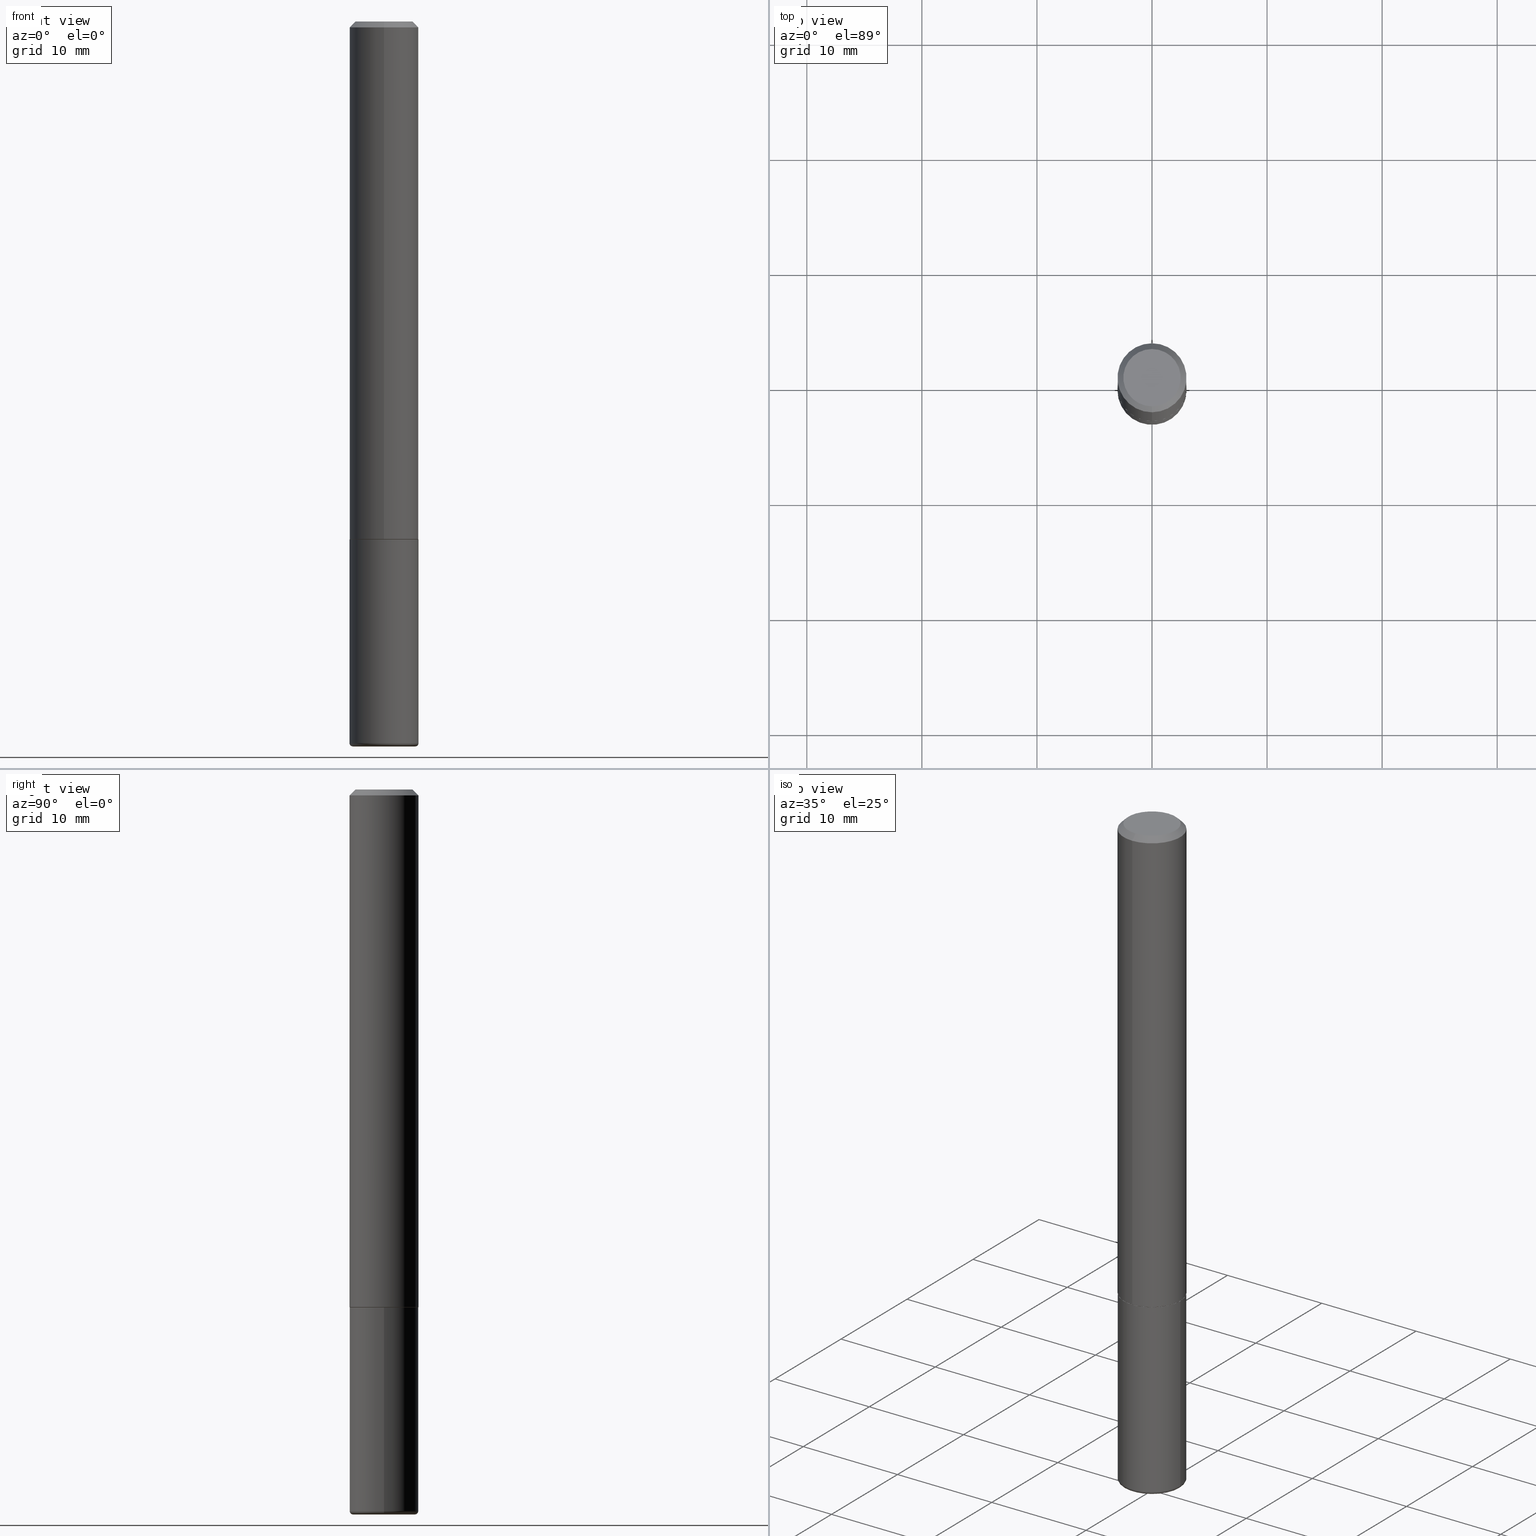
[diagram: canonical four-view strip — front | top / right | iso, engineering-drawing reading convention]
A machine part, canonical four-view strip (front | top / right | iso — engineering-drawing reading convention). The complete STEP part file that produces these views, byte-faithful:
ISO-10303-21;
HEADER;
FILE_DESCRIPTION (( 'STEP AP203' ),
    '1' );
FILE_NAME ('47481.STEP',
    '2024-03-06T01:48:49',
    ( '' ),
    ( '' ),
    'SwSTEP 2.0',
    'SolidWorks 2023',
    '' );
FILE_SCHEMA (( 'CONFIG_CONTROL_DESIGN' ));
ENDSEC;

DATA;
#1 = CIRCLE ( 'NONE', #157, 0.1180999999999999966 ) ;
#2 = CIRCLE ( 'NONE', #327, 0.1180999999999999966 ) ;
#3 = LOCAL_TIME ( 20, 48, 49.00000000000000000, #82 ) ;
#4 = EDGE_LOOP ( 'NONE', ( #145, #46 ) ) ;
#5 = ORIENTED_EDGE ( 'NONE', *, *, #284, .T. ) ;
#6 = DIRECTION ( 'NONE',  ( 1.000000000000000000, -6.982962677686265133E-15, 0.000000000000000000 ) ) ;
#7 = ADVANCED_FACE ( 'NONE', ( #159 ), #326, .F. ) ;
#8 = DIRECTION ( 'NONE',  ( 1.000000000000000000, -6.982962677686266711E-15, 4.876176775795936353E-29 ) ) ;
#9 = DIRECTION ( 'NONE',  ( 1.000000000000000000, -6.982962677686266711E-15, 4.876176775795936353E-29 ) ) ;
#10 = CARTESIAN_POINT ( 'NONE',  ( -0.1180999999999999966, -6.562964041481733724E-15, -1.771600000000000286 ) ) ;
#11 = DIRECTION ( 'NONE',  ( 1.000000000000000000, -6.982962677686347963E-15, 0.000000000000000000 ) ) ;
#12 = VERTEX_POINT ( 'NONE', #94 ) ;
#13 = PERSON_AND_ORGANIZATION_ROLE ( 'design_owner' ) ;
#14 = DIRECTION ( 'NONE',  ( 7.105427357601001859E-15, 1.000000000000000000, -3.491481338843145583E-15 ) ) ;
#15 = LINE ( 'NONE', #184, #301 ) ;
#16 = EDGE_LOOP ( 'NONE', ( #213, #5, #247, #311 ) ) ;
#17 = CALENDAR_DATE ( 2024, 5, 3 ) ;
#18 =( GEOMETRIC_REPRESENTATION_CONTEXT ( 3 ) GLOBAL_UNCERTAINTY_ASSIGNED_CONTEXT ( ( #128 ) ) GLOBAL_UNIT_ASSIGNED_CONTEXT ( ( #221, #273, #96 ) ) REPRESENTATION_CONTEXT ( 'NONE', 'WORKASPACE' ) );
#19 = CC_DESIGN_APPROVAL ( #352, ( #155 ) ) ;
#20 = DIRECTION ( 'NONE',  ( -1.000000000000000000, 6.982962677686265922E-15, -4.876176775795935793E-29 ) ) ;
#21 = VERTEX_POINT ( 'NONE', #166 ) ;
#22 = ORIENTED_EDGE ( 'NONE', *, *, #366, .T. ) ;
#23 = DATE_AND_TIME ( #17, #167 ) ;
#24 = DIRECTION ( 'NONE',  ( -2.443238767566187138E-29, 3.494674881071396916E-15, 1.000000000000000000 ) ) ;
#25 = SECURITY_CLASSIFICATION_LEVEL ( 'unclassified' ) ;
#26 = CIRCLE ( 'NONE', #296, 0.01180000000000033626 ) ;
#27 = DIRECTION ( 'NONE',  ( -6.982962677686265922E-15, -1.000000000000000000, 3.494674881071396522E-15 ) ) ;
#28 = CARTESIAN_POINT ( 'NONE',  ( 4.328441800620257960E-29, -6.191166019306087880E-15, -1.771600000000000286 ) ) ;
#29 = EDGE_CURVE ( 'NONE', #399, #208, #398, .T. ) ;
#30 = ADVANCED_FACE ( 'NONE', ( #36 ), #125, .F. ) ;
#31 = AXIS2_PLACEMENT_3D ( 'NONE', #100, #200, #268 ) ;
#32 = AXIS2_PLACEMENT_3D ( 'NONE', #88, #276, #127 ) ;
#33 = CC_DESIGN_APPROVAL ( #260, ( #246 ) ) ;
#34 = DIRECTION ( 'NONE',  ( -6.982962677686266711E-15, -1.000000000000000000, 3.491481338843145583E-15 ) ) ;
#35 = EDGE_CURVE ( 'NONE', #112, #77, #1, .T. ) ;
#36 = FACE_OUTER_BOUND ( 'NONE', #274, .T. ) ;
#37 = CARTESIAN_POINT ( 'NONE',  ( 4.328441800620257960E-29, -6.191166019306087880E-15, -1.771600000000000286 ) ) ;
#38 = VECTOR ( 'NONE', #272, 39.37007874015748143 ) ;
#39 = CARTESIAN_POINT ( 'NONE',  ( 0.000000000000000000, 0.000000000000000000, 0.000000000000000000 ) ) ;
#40 = ORIENTED_EDGE ( 'NONE', *, *, #119, .F. ) ;
#41 = CARTESIAN_POINT ( 'NONE',  ( -0.1063000000000000056, -7.863414756821319342E-15, -2.468500000000000139 ) ) ;
#42 = CARTESIAN_POINT ( 'NONE',  ( 0.000000000000000000, 0.000000000000000000, 0.000000000000000000 ) ) ;
#43 = EDGE_CURVE ( 'NONE', #226, #399, #220, .T. ) ;
#44 = ORIENTED_EDGE ( 'NONE', *, *, #29, .F. ) ;
#45 = CARTESIAN_POINT ( 'NONE',  ( 4.886477535132384121E-31, -6.989349762142808870E-17, -0.02000000000000004205 ) ) ;
#46 = ORIENTED_EDGE ( 'NONE', *, *, #43, .F. ) ;
#47 = AXIS2_PLACEMENT_3D ( 'NONE', #42, #174, #9 ) ;
#48 = VECTOR ( 'NONE', #78, 39.37007874015748143 ) ;
#49 = CARTESIAN_POINT ( 'NONE',  ( 4.886477535132384121E-31, -6.989349762142808870E-17, -0.02000000000000004205 ) ) ;
#50 = EDGE_LOOP ( 'NONE', ( #376, #215, #231, #179 ) ) ;
#51 = PERSON_AND_ORGANIZATION ( #192, #132 ) ;
#52 = DIRECTION ( 'NONE',  ( -2.445468806185136597E-29, 3.491481338843145583E-15, 1.000000000000000000 ) ) ;
#53 = ORIENTED_EDGE ( 'NONE', *, *, #349, .F. ) ;
#54 = DIRECTION ( 'NONE',  ( -2.443238767566187138E-29, 3.494674881071396916E-15, 1.000000000000000000 ) ) ;
#55 = DIRECTION ( 'NONE',  ( -2.445468806185136597E-29, 3.491481338843145583E-15, 1.000000000000000000 ) ) ;
#56 = AXIS2_PLACEMENT_3D ( 'NONE', #281, #318, #27 ) ;
#57 = CARTESIAN_POINT ( 'NONE',  ( -8.102248135368172434E-16, -0.1181000000000000660, -0.01999999999999962919 ) ) ;
#58 = CARTESIAN_POINT ( 'NONE',  ( -8.177049295570184665E-16, -0.1171000000000061991, -1.771600000000000064 ) ) ;
#59 = SHAPE_DEFINITION_REPRESENTATION ( #163, #62 ) ;
#60 = TOROIDAL_SURFACE ( 'NONE', #190, 0.1063000000000000056, 0.01180000000000033626 ) ;
#61 = AXIS2_PLACEMENT_3D ( 'NONE', #64, #205, #197 ) ;
#62 = ADVANCED_BREP_SHAPE_REPRESENTATION ( '47481', ( #386, #382, #61 ), #18 ) ;
#63 = EDGE_CURVE ( 'NONE', #295, #12, #322, .T. ) ;
#64 = CARTESIAN_POINT ( 'NONE',  ( 0.000000000000000000, 0.000000000000000000, 0.000000000000000000 ) ) ;
#65 = AXIS2_PLACEMENT_3D ( 'NONE', #76, #206, #329 ) ;
#66 = AXIS2_PLACEMENT_3D ( 'NONE', #214, #342, #219 ) ;
#67 = DIRECTION ( 'NONE',  ( 6.982962677686265922E-15, 1.000000000000000000, -3.505890868245046092E-15 ) ) ;
#68 = ADVANCED_FACE ( 'NONE', ( #225 ), #255, .T. ) ;
#69 = ORIENTED_EDGE ( 'NONE', *, *, #312, .T. ) ;
#70 = DESIGN_CONTEXT ( 'detailed design', #162, 'design' ) ;
#71 = DIRECTION ( 'NONE',  ( 2.438088387897960049E-29, -3.491481338843145188E-15, -1.000000000000000000 ) ) ;
#72 = CARTESIAN_POINT ( 'NONE',  ( 4.332392537037588763E-29, -6.185508339894517569E-15, -1.771600000000000286 ) ) ;
#73 = FACE_OUTER_BOUND ( 'NONE', #141, .T. ) ;
#74 = CIRCLE ( 'NONE', #122, 0.1180999999999999966 ) ;
#75 = ORIENTED_EDGE ( 'NONE', *, *, #63, .T. ) ;
#76 = CARTESIAN_POINT ( 'NONE',  ( 6.036639748068010694E-29, -8.618721684934306273E-15, -2.468500000000000139 ) ) ;
#77 = VERTEX_POINT ( 'NONE', #229 ) ;
#78 = DIRECTION ( 'NONE',  ( 4.937700262164540942E-15, 0.7071067811865441310, -0.7071067811865509034 ) ) ;
#79 = VERTEX_POINT ( 'NONE', #359 ) ;
#80 = DIRECTION ( 'NONE',  ( 1.000000000000000000, -6.982962677686260400E-15, 0.000000000000000000 ) ) ;
#81 = ORIENTED_EDGE ( 'NONE', *, *, #164, .F. ) ;
#82 = COORDINATED_UNIVERSAL_TIME_OFFSET ( 5, 0, .BEHIND. ) ;
#83 = ADVANCED_FACE ( 'NONE', ( #73 ), #356, .T. ) ;
#84 = CIRCLE ( 'NONE', #212, 0.1181000000000002326 ) ;
#85 = LINE ( 'NONE', #153, #338 ) ;
#86 = VERTEX_POINT ( 'NONE', #131 ) ;
#87 = FACE_OUTER_BOUND ( 'NONE', #282, .T. ) ;
#88 = CARTESIAN_POINT ( 'NONE',  ( 4.328441800620257960E-29, -6.191166019306087880E-15, -1.771600000000000286 ) ) ;
#89 = CIRCLE ( 'NONE', #323, 0.1170999999999999958 ) ;
#90 = EDGE_CURVE ( 'NONE', #79, #363, #227, .T. ) ;
#91 = AXIS2_PLACEMENT_3D ( 'NONE', #39, #304, #8 ) ;
#92 = EDGE_LOOP ( 'NONE', ( #95, #367, #243, #331 ) ) ;
#93 = ADVANCED_FACE ( 'NONE', ( #265 ), #228, .T. ) ;
#94 = CARTESIAN_POINT ( 'NONE',  ( 7.548582654578847672E-16, 0.09809999999999975684, -8.213505744438662948E-17 ) ) ;
#95 = ORIENTED_EDGE ( 'NONE', *, *, #401, .T. ) ;
#96 =( NAMED_UNIT ( * ) SI_UNIT ( $, .STERADIAN. ) SOLID_ANGLE_UNIT ( ) );
#97 = AXIS2_PLACEMENT_3D ( 'NONE', #325, #203, #307 ) ;
#98 = DIRECTION ( 'NONE',  ( -6.982962677686265922E-15, -1.000000000000000000, 3.494674881071397705E-15 ) ) ;
#99 = CC_DESIGN_DATE_AND_TIME_ASSIGNMENT ( #156, #385, ( #355 ) ) ;
#100 = CARTESIAN_POINT ( 'NONE',  ( 4.328441800620257960E-29, -6.191166019306087880E-15, -1.771600000000000286 ) ) ;
#101 = DIRECTION ( 'NONE',  ( -2.445468806185136597E-29, 3.491481338843145583E-15, 1.000000000000000000 ) ) ;
#102 = DIRECTION ( 'NONE',  ( -6.982962677686265922E-15, -1.000000000000000000, 3.494674881071397310E-15 ) ) ;
#103 = AXIS2_PLACEMENT_3D ( 'NONE', #111, #52, #80 ) ;
#104 = ORIENTED_EDGE ( 'NONE', *, *, #312, .F. ) ;
#105 = DIRECTION ( 'NONE',  ( 2.443238767566186578E-29, -3.494674881071397310E-15, -1.000000000000000000 ) ) ;
#106 = DIRECTION ( 'NONE',  ( -2.445468806185136877E-29, 3.491481338843145188E-15, 1.000000000000000000 ) ) ;
#107 = ORIENTED_EDGE ( 'NONE', *, *, #119, .T. ) ;
#108 = CALENDAR_DATE ( 2024, 5, 3 ) ;
#109 = DIRECTION ( 'NONE',  ( -6.982962677686265922E-15, -1.000000000000000000, 2.332918867347791121E-15 ) ) ;
#110 = ORIENTED_EDGE ( 'NONE', *, *, #230, .F. ) ;
#111 = CARTESIAN_POINT ( 'NONE',  ( 6.065496279980995876E-29, -8.659921164732656913E-15, -2.480300000000001059 ) ) ;
#112 = VERTEX_POINT ( 'NONE', #270 ) ;
#113 = CARTESIAN_POINT ( 'NONE',  ( 4.328441800620257960E-29, -6.191166019306087880E-15, -1.771600000000000286 ) ) ;
#114 = APPLICATION_PROTOCOL_DEFINITION ( 'international standard', 'config_control_design', 1994, #162 ) ;
#115 = CC_DESIGN_DATE_AND_TIME_ASSIGNMENT ( #368, #278, ( #246 ) ) ;
#116 = DIRECTION ( 'NONE',  ( 2.438088387897960049E-29, -3.491481338843145188E-15, -1.000000000000000000 ) ) ;
#117 = ADVANCED_FACE ( 'NONE', ( #198 ), #161, .T. ) ;
#118 = AXIS2_PLACEMENT_3D ( 'NONE', #283, #177, #149 ) ;
#119 = EDGE_CURVE ( 'NONE', #21, #77, #26, .T. ) ;
#120 = COORDINATED_UNIVERSAL_TIME_OFFSET ( 5, 0, .BEHIND. ) ;
#121 = CLOSED_SHELL ( 'NONE', ( #83, #68, #30, #117, #321, #328 ) ) ;
#122 = AXIS2_PLACEMENT_3D ( 'NONE', #373, #169, #303 ) ;
#123 = VERTEX_POINT ( 'NONE', #129 ) ;
#124 = APPROVAL ( #195, 'UNSPECIFIED' ) ;
#125 = PLANE ( 'NONE',  #189 ) ;
#126 = VERTEX_POINT ( 'NONE', #137 ) ;
#127 = DIRECTION ( 'NONE',  ( -6.982962677686265922E-15, -1.000000000000000000, 2.332918867347791121E-15 ) ) ;
#128 = UNCERTAINTY_MEASURE_WITH_UNIT (LENGTH_MEASURE( 1.000000000000000082E-05 ), #221, 'distance_accuracy_value', 'NONE');
#129 = CARTESIAN_POINT ( 'NONE',  ( -0.1063000000000000056, -7.842092475310649423E-15, -2.480300000000001059 ) ) ;
#130 = AXIS2_PLACEMENT_3D ( 'NONE', #41, #14, #241 ) ;
#131 = CARTESIAN_POINT ( 'NONE',  ( 8.391509709327014685E-16, 0.1180999999999940708, -1.770600000000000840 ) ) ;
#132 = ORGANIZATION ( 'UNSPECIFIED', 'UNSPECIFIED', '' ) ;
#133 = DIRECTION ( 'NONE',  ( -2.445468806185136597E-29, 3.491481338843145583E-15, 1.000000000000000000 ) ) ;
#134 = EDGE_CURVE ( 'NONE', #12, #295, #418, .T. ) ;
#135 = ORIENTED_EDGE ( 'NONE', *, *, #134, .T. ) ;
#136 = CARTESIAN_POINT ( 'NONE',  ( 6.065496279980995876E-29, -8.659921164732656913E-15, -2.480300000000001059 ) ) ;
#137 = CARTESIAN_POINT ( 'NONE',  ( -8.102248135368172434E-16, -0.1181000000000000660, -0.01999999999999962919 ) ) ;
#138 = EDGE_LOOP ( 'NONE', ( #343, #314 ) ) ;
#139 = DIRECTION ( 'NONE',  ( -2.443238767566187138E-29, 3.494674881071396916E-15, 1.000000000000000000 ) ) ;
#140 = AXIS2_PLACEMENT_3D ( 'NONE', #234, #299, #302 ) ;
#141 = EDGE_LOOP ( 'NONE', ( #209, #249, #199, #81 ) ) ;
#142 = APPROVAL_DATE_TIME ( #23, #352 ) ;
#143 = CARTESIAN_POINT ( 'NONE',  ( 0.000000000000000000, 0.000000000000000000, 0.000000000000000000 ) ) ;
#144 = DIRECTION ( 'NONE',  ( -2.443238767566187138E-29, 3.494674881071396916E-15, 1.000000000000000000 ) ) ;
#145 = ORIENTED_EDGE ( 'NONE', *, *, #417, .F. ) ;
#146 = DIRECTION ( 'NONE',  ( -6.982962677686265922E-15, -1.000000000000000000, 4.626330217890360659E-15 ) ) ;
#147 = ORIENTED_EDGE ( 'NONE', *, *, #401, .F. ) ;
#148 = PERSON_AND_ORGANIZATION ( #192, #132 ) ;
#149 = DIRECTION ( 'NONE',  ( 6.982962677686265922E-15, 1.000000000000000000, -3.505890868245046092E-15 ) ) ;
#150 = PRODUCT_RELATED_PRODUCT_CATEGORY ( 'detail', '', ( #232 ) ) ;
#151 = APPROVAL_ROLE ( '' ) ;
#152 = AXIS2_PLACEMENT_3D ( 'NONE', #414, #116, #20 ) ;
#153 = CARTESIAN_POINT ( 'NONE',  ( 8.391509709326790846E-16, 0.1181000000000001215, -4.127211034545323724E-16 ) ) ;
#154 = CONICAL_SURFACE ( 'NONE', #118, 0.1180999999999999966, 0.7853981633974469467 ) ;
#155 = PRODUCT_DEFINITION_FORMATION_WITH_SPECIFIED_SOURCE ( 'ANY', '', #232, .NOT_KNOWN. ) ;
#156 = DATE_AND_TIME ( #381, #389 ) ;
#157 = AXIS2_PLACEMENT_3D ( 'NONE', #397, #133, #6 ) ;
#158 = AXIS2_PLACEMENT_3D ( 'NONE', #218, #191, #416 ) ;
#159 = FACE_OUTER_BOUND ( 'NONE', #4, .T. ) ;
#160 = CC_DESIGN_PERSON_AND_ORGANIZATION_ASSIGNMENT ( #148, #210, ( #155 ) ) ;
#161 = CYLINDRICAL_SURFACE ( 'NONE', #91, 0.1180999999999999966 ) ;
#162 = APPLICATION_CONTEXT ( 'configuration controlled 3d designs of mechanical parts and assemblies' ) ;
#163 = PRODUCT_DEFINITION_SHAPE ( 'NONE', 'NONE',  #246 ) ;
#164 = EDGE_CURVE ( 'NONE', #77, #79, #358, .T. ) ;
#165 = AXIS2_PLACEMENT_3D ( 'NONE', #136, #101, #236 ) ;
#166 = CARTESIAN_POINT ( 'NONE',  ( 0.1063000000000000056, -9.402210097370707052E-15, -2.480300000000001059 ) ) ;
#167 = LOCAL_TIME ( 20, 48, 49.00000000000000000, #288 ) ;
#168 = APPLICATION_PROTOCOL_DEFINITION ( 'international standard', 'config_control_design', 1994, #275 ) ;
#169 = DIRECTION ( 'NONE',  ( -2.445468806185136597E-29, 3.491481338843145583E-15, 1.000000000000000000 ) ) ;
#170 = DIRECTION ( 'NONE',  ( -4.937700262164969294E-15, -0.7071067811866054154, 0.7071067811864896191 ) ) ;
#171 = ORIENTED_EDGE ( 'NONE', *, *, #284, .F. ) ;
#172 = APPROVAL_STATUS ( 'not_yet_approved' ) ;
#173 = CARTESIAN_POINT ( 'NONE',  ( 6.850286386810209760E-16, 0.09809999999999975684, -2.124813316387448711E-16 ) ) ;
#174 = DIRECTION ( 'NONE',  ( -2.445468806185136597E-29, 3.491481338843145583E-15, 1.000000000000000000 ) ) ;
#175 = ORIENTED_EDGE ( 'NONE', *, *, #267, .T. ) ;
#176 = PERSON_AND_ORGANIZATION ( #192, #132 ) ;
#177 = DIRECTION ( 'NONE',  ( 2.443238767566187138E-29, -3.494674881071396916E-15, -1.000000000000000000 ) ) ;
#178 = LOCAL_TIME ( 20, 48, 49.00000000000000000, #341 ) ;
#179 = ORIENTED_EDGE ( 'NONE', *, *, #201, .F. ) ;
#180 = CYLINDRICAL_SURFACE ( 'NONE', #56, 0.1181000000000001215 ) ;
#181 = ORIENTED_EDGE ( 'NONE', *, *, #267, .F. ) ;
#182 = PERSON_AND_ORGANIZATION ( #192, #132 ) ;
#183 = CC_DESIGN_PERSON_AND_ORGANIZATION_ASSIGNMENT ( #176, #372, ( #246 ) ) ;
#184 = CARTESIAN_POINT ( 'NONE',  ( 8.320455435751204777E-16, 0.1170999999999937924, -1.771600000000000508 ) ) ;
#185 = ORIENTED_EDGE ( 'NONE', *, *, #188, .T. ) ;
#186 =( LENGTH_UNIT ( ) NAMED_UNIT ( * ) SI_UNIT ( $, .METRE. ) );
#187 = DIRECTION ( 'NONE',  ( 1.000000000000000000, -6.982962677686261189E-15, 4.883557194083110659E-29 ) ) ;
#188 = EDGE_CURVE ( 'NONE', #21, #123, #320, .T. ) ;
#189 = AXIS2_PLACEMENT_3D ( 'NONE', #72, #71, #390 ) ;
#190 = AXIS2_PLACEMENT_3D ( 'NONE', #344, #55, #187 ) ;
#191 = DIRECTION ( 'NONE',  ( -2.443238767566187138E-29, 3.494674881071396916E-15, 1.000000000000000000 ) ) ;
#192 = PERSON ( 'UNSPECIFIED', 'UNSPECIFIED', 'UNSPECIFIED', ('UNSPECIFIED'), ('UNSPECIFIED'), ('UNSPECIFIED') ) ;
#193 = DIRECTION ( 'NONE',  ( -2.443238767566187138E-29, 3.494674881071397310E-15, 1.000000000000000000 ) ) ;
#194 = PERSON_AND_ORGANIZATION_ROLE ( 'classification_officer' ) ;
#195 = APPROVAL_STATUS ( 'not_yet_approved' ) ;
#196 = AXIS2_PLACEMENT_3D ( 'NONE', #37, #330, #102 ) ;
#197 = DIRECTION ( 'NONE',  ( 1.000000000000000000, 0.000000000000000000, 0.000000000000000000 ) ) ;
#198 = FACE_OUTER_BOUND ( 'NONE', #50, .T. ) ;
#199 = ORIENTED_EDGE ( 'NONE', *, *, #90, .F. ) ;
#200 = DIRECTION ( 'NONE',  ( -2.443238767566187138E-29, 3.494674881071396916E-15, 1.000000000000000000 ) ) ;
#201 = EDGE_CURVE ( 'NONE', #363, #79, #388, .T. ) ;
#202 = CARTESIAN_POINT ( 'NONE',  ( 0.1180999999999999966, -8.246878922347480654E-16, 5.758764772215000440E-30 ) ) ;
#203 = DIRECTION ( 'NONE',  ( -2.445468806185136597E-29, 3.491481338843145583E-15, 1.000000000000000000 ) ) ;
#204 = APPROVAL_PERSON_ORGANIZATION ( #182, #352, #151 ) ;
#205 = DIRECTION ( 'NONE',  ( 0.000000000000000000, 0.000000000000000000, 1.000000000000000000 ) ) ;
#206 = DIRECTION ( 'NONE',  ( -2.445468806185136597E-29, 3.491481338843145583E-15, 1.000000000000000000 ) ) ;
#207 = CC_DESIGN_PERSON_AND_ORGANIZATION_ASSIGNMENT ( #293, #194, ( #355 ) ) ;
#208 = VERTEX_POINT ( 'NONE', #412 ) ;
#209 = ORIENTED_EDGE ( 'NONE', *, *, #349, .T. ) ;
#210 = PERSON_AND_ORGANIZATION_ROLE ( 'creator' ) ;
#211 = DIRECTION ( 'NONE',  ( -6.982962677686265922E-15, -1.000000000000000000, 3.505890868245046092E-15 ) ) ;
#212 = AXIS2_PLACEMENT_3D ( 'NONE', #377, #139, #146 ) ;
#213 = ORIENTED_EDGE ( 'NONE', *, *, #63, .F. ) ;
#214 = CARTESIAN_POINT ( 'NONE',  ( 4.332392537037588763E-29, -6.185508339894517569E-15, -1.771600000000000286 ) ) ;
#215 = ORIENTED_EDGE ( 'NONE', *, *, #35, .T. ) ;
#216 = ADVANCED_FACE ( 'NONE', ( #346 ), #180, .T. ) ;
#217 = FACE_OUTER_BOUND ( 'NONE', #138, .T. ) ;
#218 = CARTESIAN_POINT ( 'NONE',  ( 4.325998561852691348E-29, -6.187671344425017014E-15, -1.770600000000000174 ) ) ;
#219 = DIRECTION ( 'NONE',  ( 1.000000000000000000, -6.982962677686265133E-15, 0.000000000000000000 ) ) ;
#220 = CIRCLE ( 'NONE', #31, 0.1170999999999999958 ) ;
#221 =( CONVERSION_BASED_UNIT ( 'INCH', #387 ) LENGTH_UNIT ( ) NAMED_UNIT ( #408 ) );
#222 = AXIS2_PLACEMENT_3D ( 'NONE', #233, #271, #67 ) ;
#223 = EDGE_CURVE ( 'NONE', #112, #363, #405, .T. ) ;
#224 = EDGE_LOOP ( 'NONE', ( #185, #240, #53, #40 ) ) ;
#225 = FACE_OUTER_BOUND ( 'NONE', #224, .T. ) ;
#226 = VERTEX_POINT ( 'NONE', #315 ) ;
#227 = CIRCLE ( 'NONE', #97, 0.1180999999999999966 ) ;
#228 = CONICAL_SURFACE ( 'NONE', #222, 0.1180999999999999966, 0.7853981633974469467 ) ;
#229 = CARTESIAN_POINT ( 'NONE',  ( 0.1181000000000001632, -9.443409577169056114E-15, -2.468500000000000139 ) ) ;
#230 = EDGE_CURVE ( 'NONE', #86, #285, #85, .T. ) ;
#231 = ORIENTED_EDGE ( 'NONE', *, *, #164, .T. ) ;
#232 = PRODUCT ( '47481', '47481', '', ( #235 ) ) ;
#233 = CARTESIAN_POINT ( 'NONE',  ( 4.886477535132384121E-31, -6.989349762142808870E-17, -0.02000000000000004205 ) ) ;
#234 = CARTESIAN_POINT ( 'NONE',  ( -6.369341406389364514E-45, 9.110357005365375257E-31, 2.606925483887165818E-16 ) ) ;
#235 = MECHANICAL_CONTEXT ( 'NONE', #275, 'mechanical' ) ;
#236 = DIRECTION ( 'NONE',  ( 1.000000000000000000, -6.982962677686260400E-15, 0.000000000000000000 ) ) ;
#237 = CIRCLE ( 'NONE', #165, 0.1063000000000000056 ) ;
#238 = ORIENTED_EDGE ( 'NONE', *, *, #90, .T. ) ;
#239 = LOCAL_TIME ( 20, 48, 49.00000000000000000, #257 ) ;
#240 = ORIENTED_EDGE ( 'NONE', *, *, #384, .T. ) ;
#241 = DIRECTION ( 'NONE',  ( -1.000000000000000000, 7.105427357601042879E-15, 0.000000000000000000 ) ) ;
#242 = DIRECTION ( 'NONE',  ( -2.443238767566187138E-29, 3.494674881071397310E-15, 1.000000000000000000 ) ) ;
#243 = ORIENTED_EDGE ( 'NONE', *, *, #298, .F. ) ;
#244 = PLANE ( 'NONE',  #269 ) ;
#245 = LINE ( 'NONE', #313, #48 ) ;
#246 = PRODUCT_DEFINITION ( 'UNKNOWN', '', #155, #70 ) ;
#247 = ORIENTED_EDGE ( 'NONE', *, *, #298, .T. ) ;
#248 = CARTESIAN_POINT ( 'NONE',  ( -8.246878922347488542E-16, -0.1181000000000001215, 4.127211034545323724E-16 ) ) ;
#249 = ORIENTED_EDGE ( 'NONE', *, *, #223, .T. ) ;
#250 = ADVANCED_FACE ( 'NONE', ( #251 ), #319, .T. ) ;
#251 = FACE_OUTER_BOUND ( 'NONE', #340, .T. ) ;
#252 = APPROVAL_ROLE ( '' ) ;
#253 = FACE_OUTER_BOUND ( 'NONE', #308, .T. ) ;
#254 = EDGE_CURVE ( 'NONE', #12, #285, #245, .T. ) ;
#255 = TOROIDAL_SURFACE ( 'NONE', #65, 0.1063000000000000056, 0.01180000000000033626 ) ;
#256 = AXIS2_PLACEMENT_3D ( 'NONE', #300, #395, #98 ) ;
#257 = COORDINATED_UNIVERSAL_TIME_OFFSET ( 5, 0, .BEHIND. ) ;
#258 = CC_DESIGN_SECURITY_CLASSIFICATION ( #355, ( #155 ) ) ;
#259 = DATE_AND_TIME ( #345, #239 ) ;
#260 = APPROVAL ( #413, 'UNSPECIFIED' ) ;
#261 = CLOSED_SHELL ( 'NONE', ( #348, #216, #280, #93, #396, #250, #7, #379 ) ) ;
#262 = EDGE_CURVE ( 'NONE', #226, #86, #15, .T. ) ;
#263 = AXIS2_PLACEMENT_3D ( 'NONE', #49, #144, #334 ) ;
#264 = ORIENTED_EDGE ( 'NONE', *, *, #262, .F. ) ;
#265 = FACE_OUTER_BOUND ( 'NONE', #335, .T. ) ;
#266 = ORIENTED_EDGE ( 'NONE', *, *, #305, .T. ) ;
#267 = EDGE_CURVE ( 'NONE', #285, #126, #2, .T. ) ;
#268 = DIRECTION ( 'NONE',  ( -6.982962677686265922E-15, -1.000000000000000000, 2.332918867347791121E-15 ) ) ;
#269 = AXIS2_PLACEMENT_3D ( 'NONE', #173, #105, #369 ) ;
#270 = CARTESIAN_POINT ( 'NONE',  ( -0.1181000000000001632, -7.779570714001625710E-15, -2.468500000000000139 ) ) ;
#271 = DIRECTION ( 'NONE',  ( 2.443238767566187138E-29, -3.494674881071396916E-15, -1.000000000000000000 ) ) ;
#272 = DIRECTION ( 'NONE',  ( -2.445468806185136877E-29, 3.491481338843145188E-15, 1.000000000000000000 ) ) ;
#273 =( NAMED_UNIT ( * ) PLANE_ANGLE_UNIT ( ) SI_UNIT ( $, .RADIAN. ) );
#274 = EDGE_LOOP ( 'NONE', ( #238, #306 ) ) ;
#275 = APPLICATION_CONTEXT ( 'configuration controlled 3d designs of mechanical parts and assemblies' ) ;
#276 = DIRECTION ( 'NONE',  ( -2.443238767566187138E-29, 3.494674881071396916E-15, 1.000000000000000000 ) ) ;
#277 = ORIENTED_EDGE ( 'NONE', *, *, #384, .F. ) ;
#278 = DATE_TIME_ROLE ( 'creation_date' ) ;
#279 = DIRECTION ( 'NONE',  ( -2.443238767566187138E-29, 3.494674881071396916E-15, 1.000000000000000000 ) ) ;
#280 = ADVANCED_FACE ( 'NONE', ( #289 ), #154, .T. ) ;
#281 = CARTESIAN_POINT ( 'NONE',  ( 0.000000000000000000, 0.000000000000000000, 0.000000000000000000 ) ) ;
#282 = EDGE_LOOP ( 'NONE', ( #277, #22, #107, #406 ) ) ;
#283 = CARTESIAN_POINT ( 'NONE',  ( 4.886477535132384121E-31, -6.989349762142808870E-17, -0.02000000000000004205 ) ) ;
#284 = EDGE_CURVE ( 'NONE', #295, #126, #409, .T. ) ;
#285 = VERTEX_POINT ( 'NONE', #339 ) ;
#286 = DIRECTION ( 'NONE',  ( -4.851104656540957175E-15, -0.7071067811865490160, -0.7071067811865460184 ) ) ;
#287 = CIRCLE ( 'NONE', #263, 0.1180999999999999966 ) ;
#288 = COORDINATED_UNIVERSAL_TIME_OFFSET ( 5, 0, .BEHIND. ) ;
#289 = FACE_OUTER_BOUND ( 'NONE', #16, .T. ) ;
#290 = CC_DESIGN_PERSON_AND_ORGANIZATION_ASSIGNMENT ( #317, #336, ( #155 ) ) ;
#291 = PERSON_AND_ORGANIZATION ( #192, #132 ) ;
#292 = APPROVAL_DATE_TIME ( #259, #124 ) ;
#293 = PERSON_AND_ORGANIZATION ( #192, #132 ) ;
#294 = CIRCLE ( 'NONE', #130, 0.01180000000000033626 ) ;
#295 = VERTEX_POINT ( 'NONE', #402 ) ;
#296 = AXIS2_PLACEMENT_3D ( 'NONE', #324, #34, #11 ) ;
#297 = APPROVAL_PERSON_ORGANIZATION ( #291, #124, #415 ) ;
#298 = EDGE_CURVE ( 'NONE', #126, #285, #287, .T. ) ;
#299 = DIRECTION ( 'NONE',  ( -2.443238767566187138E-29, 3.494674881071396916E-15, 1.000000000000000000 ) ) ;
#300 = CARTESIAN_POINT ( 'NONE',  ( -6.369341406389364514E-45, 9.110357005365375257E-31, 2.606925483887165818E-16 ) ) ;
#301 = VECTOR ( 'NONE', #370, 39.37007874015748143 ) ;
#302 = DIRECTION ( 'NONE',  ( -6.982962677686265922E-15, -1.000000000000000000, 3.494674881071397705E-15 ) ) ;
#303 = DIRECTION ( 'NONE',  ( 1.000000000000000000, -6.982962677686265133E-15, 0.000000000000000000 ) ) ;
#304 = DIRECTION ( 'NONE',  ( -2.445468806185136597E-29, 3.491481338843145583E-15, 1.000000000000000000 ) ) ;
#305 = EDGE_CURVE ( 'NONE', #208, #126, #375, .T. ) ;
#306 = ORIENTED_EDGE ( 'NONE', *, *, #201, .T. ) ;
#307 = DIRECTION ( 'NONE',  ( 1.000000000000000000, -6.982962677686265133E-15, 0.000000000000000000 ) ) ;
#308 = EDGE_LOOP ( 'NONE', ( #371, #360, #147, #44 ) ) ;
#309 = CALENDAR_DATE ( 2024, 5, 3 ) ;
#310 = PLANE ( 'NONE',  #152 ) ;
#311 = ORIENTED_EDGE ( 'NONE', *, *, #254, .F. ) ;
#312 = EDGE_CURVE ( 'NONE', #86, #208, #84, .T. ) ;
#313 = CARTESIAN_POINT ( 'NONE',  ( 8.246878922347484598E-16, 0.1180999999999999273, -0.02000000000000045838 ) ) ;
#314 = ORIENTED_EDGE ( 'NONE', *, *, #366, .F. ) ;
#315 = CARTESIAN_POINT ( 'NONE',  ( 8.355982572539216720E-16, 0.1170999999999937924, -1.771600000000000508 ) ) ;
#316 = ORIENTED_EDGE ( 'NONE', *, *, #43, .T. ) ;
#317 = PERSON_AND_ORGANIZATION ( #192, #132 ) ;
#318 = DIRECTION ( 'NONE',  ( -2.443238767566187138E-29, 3.494674881071396916E-15, 1.000000000000000000 ) ) ;
#319 = CONICAL_SURFACE ( 'NONE', #354, 0.1170999999999999958, 0.7853981633975336552 ) ;
#320 = CIRCLE ( 'NONE', #103, 0.1063000000000000056 ) ;
#321 = ADVANCED_FACE ( 'NONE', ( #87 ), #60, .T. ) ;
#322 = CIRCLE ( 'NONE', #140, 0.09809999999999975684 ) ;
#323 = AXIS2_PLACEMENT_3D ( 'NONE', #28, #54, #383 ) ;
#324 = CARTESIAN_POINT ( 'NONE',  ( 0.1063000000000000056, -9.361010617572356412E-15, -2.468500000000000139 ) ) ;
#325 = CARTESIAN_POINT ( 'NONE',  ( 4.332392537037588763E-29, -6.185508339894517569E-15, -1.771600000000000286 ) ) ;
#326 = PLANE ( 'NONE',  #196 ) ;
#327 = AXIS2_PLACEMENT_3D ( 'NONE', #45, #24, #211 ) ;
#328 = ADVANCED_FACE ( 'NONE', ( #217 ), #310, .T. ) ;
#329 = DIRECTION ( 'NONE',  ( 1.000000000000000000, -6.982962677686261189E-15, 4.883557194083110659E-29 ) ) ;
#330 = DIRECTION ( 'NONE',  ( -2.443238767566186578E-29, 3.494674881071397310E-15, 1.000000000000000000 ) ) ;
#331 = ORIENTED_EDGE ( 'NONE', *, *, #305, .F. ) ;
#332 = APPROVAL_DATE_TIME ( #378, #260 ) ;
#333 = FACE_OUTER_BOUND ( 'NONE', #403, .T. ) ;
#334 = DIRECTION ( 'NONE',  ( -6.982962677686265922E-15, -1.000000000000000000, 3.505890868245046092E-15 ) ) ;
#335 = EDGE_LOOP ( 'NONE', ( #171, #391, #357, #175 ) ) ;
#336 = PERSON_AND_ORGANIZATION_ROLE ( 'design_supplier' ) ;
#337 = CYLINDRICAL_SURFACE ( 'NONE', #374, 0.1181000000000001215 ) ;
#338 = VECTOR ( 'NONE', #242, 39.37007874015748143 ) ;
#339 = CARTESIAN_POINT ( 'NONE',  ( 8.246878922347484598E-16, 0.1180999999999999273, -0.02000000000000045838 ) ) ;
#340 = EDGE_LOOP ( 'NONE', ( #264, #316, #364, #104 ) ) ;
#341 = COORDINATED_UNIVERSAL_TIME_OFFSET ( 5, 0, .BEHIND. ) ;
#342 = DIRECTION ( 'NONE',  ( -2.445468806185136597E-29, 3.491481338843145583E-15, 1.000000000000000000 ) ) ;
#343 = ORIENTED_EDGE ( 'NONE', *, *, #188, .F. ) ;
#344 = CARTESIAN_POINT ( 'NONE',  ( 6.036639748068010694E-29, -8.618721684934306273E-15, -2.468500000000000139 ) ) ;
#345 = CALENDAR_DATE ( 2024, 5, 3 ) ;
#346 = FACE_OUTER_BOUND ( 'NONE', #92, .T. ) ;
#347 = CIRCLE ( 'NONE', #158, 0.1181000000000002326 ) ;
#348 = ADVANCED_FACE ( 'NONE', ( #253 ), #350, .T. ) ;
#349 = EDGE_CURVE ( 'NONE', #77, #112, #74, .T. ) ;
#350 = CONICAL_SURFACE ( 'NONE', #32, 0.1170999999999999958, 0.7853981633975336552 ) ;
#351 = CC_DESIGN_APPROVAL ( #124, ( #355 ) ) ;
#352 = APPROVAL ( #172, 'UNSPECIFIED' ) ;
#353 = CARTESIAN_POINT ( 'NONE',  ( -8.177049295570184665E-16, -0.1171000000000061991, -1.771600000000000064 ) ) ;
#354 = AXIS2_PLACEMENT_3D ( 'NONE', #113, #365, #109 ) ;
#355 = SECURITY_CLASSIFICATION ( '', '', #25 ) ;
#356 = CYLINDRICAL_SURFACE ( 'NONE', #47, 0.1180999999999999966 ) ;
#357 = ORIENTED_EDGE ( 'NONE', *, *, #254, .T. ) ;
#358 = LINE ( 'NONE', #202, #38 ) ;
#359 = CARTESIAN_POINT ( 'NONE',  ( 0.1180999999999999966, -7.010196232129265043E-15, -1.771600000000000286 ) ) ;
#360 = ORIENTED_EDGE ( 'NONE', *, *, #262, .T. ) ;
#361 = VECTOR ( 'NONE', #170, 39.37007874015748143 ) ;
#362 = FACE_OUTER_BOUND ( 'NONE', #410, .T. ) ;
#363 = VERTEX_POINT ( 'NONE', #10 ) ;
#364 = ORIENTED_EDGE ( 'NONE', *, *, #29, .T. ) ;
#365 = DIRECTION ( 'NONE',  ( -2.443238767566187138E-29, 3.494674881071396916E-15, 1.000000000000000000 ) ) ;
#366 = EDGE_CURVE ( 'NONE', #123, #21, #237, .T. ) ;
#367 = ORIENTED_EDGE ( 'NONE', *, *, #230, .T. ) ;
#368 = DATE_AND_TIME ( #108, #3 ) ;
#369 = DIRECTION ( 'NONE',  ( 6.982962677686265922E-15, 1.000000000000000000, -3.494674881071397310E-15 ) ) ;
#370 = DIRECTION ( 'NONE',  ( 5.024295867788490741E-15, 0.7071067811866103003, 0.7071067811864847341 ) ) ;
#371 = ORIENTED_EDGE ( 'NONE', *, *, #417, .T. ) ;
#372 = PERSON_AND_ORGANIZATION_ROLE ( 'creator' ) ;
#373 = CARTESIAN_POINT ( 'NONE',  ( 6.036639748068010694E-29, -8.618721684934306273E-15, -2.468500000000000139 ) ) ;
#374 = AXIS2_PLACEMENT_3D ( 'NONE', #143, #279, #404 ) ;
#375 = LINE ( 'NONE', #248, #411 ) ;
#376 = ORIENTED_EDGE ( 'NONE', *, *, #223, .F. ) ;
#377 = CARTESIAN_POINT ( 'NONE',  ( 4.325998561852691348E-29, -6.187671344425017014E-15, -1.770600000000000174 ) ) ;
#378 = DATE_AND_TIME ( #309, #178 ) ;
#379 = ADVANCED_FACE ( 'NONE', ( #362 ), #244, .F. ) ;
#380 = CARTESIAN_POINT ( 'NONE',  ( -0.1180999999999999966, 8.391509709326782957E-16, -5.809262341591043784E-30 ) ) ;
#381 = CALENDAR_DATE ( 2024, 5, 3 ) ;
#382 = MANIFOLD_SOLID_BREP ( 'Body-Move/Copy2[2]', #261 ) ;
#383 = DIRECTION ( 'NONE',  ( -6.982962677686265922E-15, -1.000000000000000000, 2.332918867347791121E-15 ) ) ;
#384 = EDGE_CURVE ( 'NONE', #123, #112, #294, .T. ) ;
#385 = DATE_TIME_ROLE ( 'classification_date' ) ;
#386 = MANIFOLD_SOLID_BREP ( 'Body-Move/Copy2[1]', #121 ) ;
#387 = LENGTH_MEASURE_WITH_UNIT ( LENGTH_MEASURE( 0.02539999999999999897 ), #186 );
#388 = CIRCLE ( 'NONE', #66, 0.1180999999999999966 ) ;
#389 = LOCAL_TIME ( 20, 48, 49.00000000000000000, #120 ) ;
#390 = DIRECTION ( 'NONE',  ( -1.000000000000000000, 6.982962677686265922E-15, -4.876176775795935793E-29 ) ) ;
#391 = ORIENTED_EDGE ( 'NONE', *, *, #134, .F. ) ;
#392 = CC_DESIGN_PERSON_AND_ORGANIZATION_ASSIGNMENT ( #407, #13, ( #232 ) ) ;
#393 = VECTOR ( 'NONE', #286, 39.37007874015748143 ) ;
#394 = APPROVAL_PERSON_ORGANIZATION ( #51, #260, #252 ) ;
#395 = DIRECTION ( 'NONE',  ( -2.443238767566187138E-29, 3.494674881071396916E-15, 1.000000000000000000 ) ) ;
#396 = ADVANCED_FACE ( 'NONE', ( #333 ), #337, .T. ) ;
#397 = CARTESIAN_POINT ( 'NONE',  ( 6.036639748068010694E-29, -8.618721684934306273E-15, -2.468500000000000139 ) ) ;
#398 = LINE ( 'NONE', #353, #361 ) ;
#399 = VERTEX_POINT ( 'NONE', #58 ) ;
#400 = VECTOR ( 'NONE', #106, 39.37007874015748143 ) ;
#401 = EDGE_CURVE ( 'NONE', #208, #86, #347, .T. ) ;
#402 = CARTESIAN_POINT ( 'NONE',  ( -7.416198335591014190E-16, -0.09809999999999975684, 6.035201542218197439E-16 ) ) ;
#403 = EDGE_LOOP ( 'NONE', ( #110, #69, #266, #181 ) ) ;
#404 = DIRECTION ( 'NONE',  ( -6.982962677686265922E-15, -1.000000000000000000, 3.494674881071396522E-15 ) ) ;
#405 = LINE ( 'NONE', #380, #400 ) ;
#406 = ORIENTED_EDGE ( 'NONE', *, *, #35, .F. ) ;
#407 = PERSON_AND_ORGANIZATION ( #192, #132 ) ;
#408 = DIMENSIONAL_EXPONENTS ( 1.000000000000000000, 0.000000000000000000, 0.000000000000000000, 0.000000000000000000, 0.000000000000000000, 0.000000000000000000, 0.000000000000000000 ) ;
#409 = LINE ( 'NONE', #57, #393 ) ;
#410 = EDGE_LOOP ( 'NONE', ( #135, #75 ) ) ;
#411 = VECTOR ( 'NONE', #193, 39.37007874015748143 ) ;
#412 = CARTESIAN_POINT ( 'NONE',  ( -8.246878922347063544E-16, -0.1181000000000064221, -1.770599999999999730 ) ) ;
#413 = APPROVAL_STATUS ( 'not_yet_approved' ) ;
#414 = CARTESIAN_POINT ( 'NONE',  ( -2.836700619046468893E-29, -2.140837380572130496E-14, -2.480300000000000171 ) ) ;
#415 = APPROVAL_ROLE ( '' ) ;
#416 = DIRECTION ( 'NONE',  ( -6.982962677686265922E-15, -1.000000000000000000, 4.626330217890360659E-15 ) ) ;
#417 = EDGE_CURVE ( 'NONE', #399, #226, #89, .T. ) ;
#418 = CIRCLE ( 'NONE', #256, 0.09809999999999975684 ) ;
ENDSEC;
END-ISO-10303-21;
